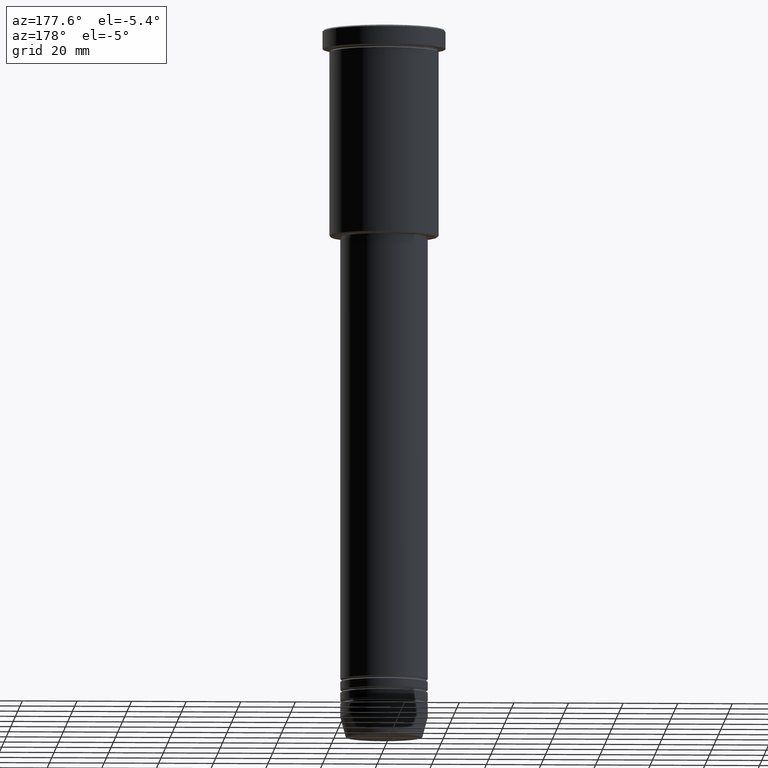
[diagram: clean part render]
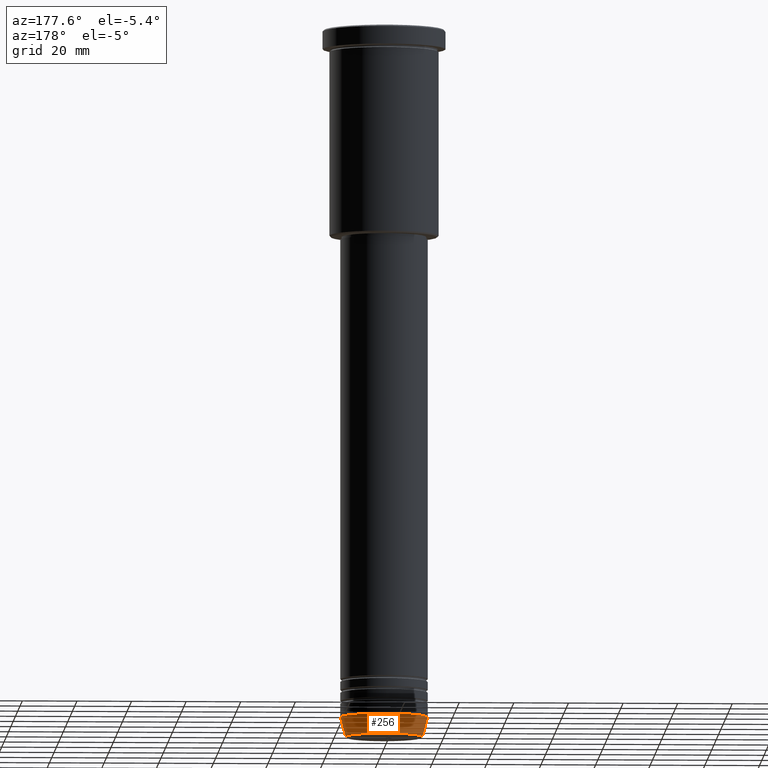
[diagram: same view with one face highlighted and labeled with its STEP entity id]
A machine part, auxiliary view. The second image highlights one B-rep face of the part: STEP entity #256.
In plain terms, the highlighted conical surface has half-angle 15 deg.
Its self-contained STEP definition (entity closure, byte-faithful):
#1 = EDGE_CURVE ( 'NONE', #407, #90, #807, .T. ) ;
#14 = VERTEX_POINT ( 'NONE', #158 ) ;
#49 = CARTESIAN_POINT ( 'NONE',  ( 16.00000000000000000, 0.000000000000000000, -252.5000000000000000 ) ) ;
#63 = CIRCLE ( 'NONE', #469, 16.00000000000000000 ) ;
#64 = CARTESIAN_POINT ( 'NONE',  ( 16.00000000000000000, 0.000000000000000000, -252.5000000000000000 ) ) ;
#90 = VERTEX_POINT ( 'NONE', #625 ) ;
#112 = ORIENTED_EDGE ( 'NONE', *, *, #300, .F. ) ;
#122 = DIRECTION ( 'NONE',  ( -0.000000000000000000, -0.000000000000000000, 1.000000000000000000 ) ) ;
#158 = CARTESIAN_POINT ( 'NONE',  ( -16.00000000000000000, 1.959434878635765131E-15, -252.5000000000000000 ) ) ;
#167 = EDGE_LOOP ( 'NONE', ( #668, #435, #112, #548 ) ) ;
#182 = VECTOR ( 'NONE', #536, 1000.000000000000000 ) ;
#246 = LINE ( 'NONE', #49, #1070 ) ;
#256 = ADVANCED_FACE ( 'NONE', ( #264 ), #614, .T. ) ;
#264 = FACE_OUTER_BOUND ( 'NONE', #167, .T. ) ;
#279 = DIRECTION ( 'NONE',  ( 1.000000000000000000, 0.000000000000000000, 0.000000000000000000 ) ) ;
#300 = EDGE_CURVE ( 'NONE', #715, #14, #63, .T. ) ;
#407 = VERTEX_POINT ( 'NONE', #437 ) ;
#423 = DIRECTION ( 'NONE',  ( 0.2588190451025213501, 0.000000000000000000, 0.9659258262890680902 ) ) ;
#430 = EDGE_CURVE ( 'NONE', #407, #715, #246, .T. ) ;
#435 = ORIENTED_EDGE ( 'NONE', *, *, #560, .T. ) ;
#437 = CARTESIAN_POINT ( 'NONE',  ( 14.08968047592161632, 0.000000000000000000, -259.6294095225512706 ) ) ;
#469 = AXIS2_PLACEMENT_3D ( 'NONE', #945, #122, #861 ) ;
#520 = DIRECTION ( 'NONE',  ( 1.000000000000000000, 0.000000000000000000, 0.000000000000000000 ) ) ;
#536 = DIRECTION ( 'NONE',  ( -0.2588190451025213501, 3.169619151431772337E-17, 0.9659258262890680902 ) ) ;
#548 = ORIENTED_EDGE ( 'NONE', *, *, #430, .F. ) ;
#560 = EDGE_CURVE ( 'NONE', #90, #14, #1008, .T. ) ;
#606 = CARTESIAN_POINT ( 'NONE',  ( 0.000000000000000000, 0.000000000000000000, -259.6294095225512706 ) ) ;
#614 = CONICAL_SURFACE ( 'NONE', #1052, 16.00000000000000000, 0.2617993877991500740 ) ;
#625 = CARTESIAN_POINT ( 'NONE',  ( -14.08968047592161632, 1.842461544110200874E-15, -259.6294095225512706 ) ) ;
#627 = CARTESIAN_POINT ( 'NONE',  ( -16.00000000000000000, 1.959434878635765131E-15, -252.5000000000000000 ) ) ;
#668 = ORIENTED_EDGE ( 'NONE', *, *, #1, .T. ) ;
#715 = VERTEX_POINT ( 'NONE', #64 ) ;
#754 = AXIS2_PLACEMENT_3D ( 'NONE', #606, #971, #520 ) ;
#807 = CIRCLE ( 'NONE', #754, 14.08968047592161632 ) ;
#840 = CARTESIAN_POINT ( 'NONE',  ( 0.000000000000000000, 0.000000000000000000, -252.5000000000000000 ) ) ;
#861 = DIRECTION ( 'NONE',  ( 1.000000000000000000, 0.000000000000000000, 0.000000000000000000 ) ) ;
#945 = CARTESIAN_POINT ( 'NONE',  ( 0.000000000000000000, 0.000000000000000000, -252.5000000000000000 ) ) ;
#971 = DIRECTION ( 'NONE',  ( -0.000000000000000000, -0.000000000000000000, 1.000000000000000000 ) ) ;
#1005 = DIRECTION ( 'NONE',  ( -0.000000000000000000, -0.000000000000000000, 1.000000000000000000 ) ) ;
#1008 = LINE ( 'NONE', #627, #182 ) ;
#1052 = AXIS2_PLACEMENT_3D ( 'NONE', #840, #1005, #279 ) ;
#1070 = VECTOR ( 'NONE', #423, 1000.000000000000000 ) ;